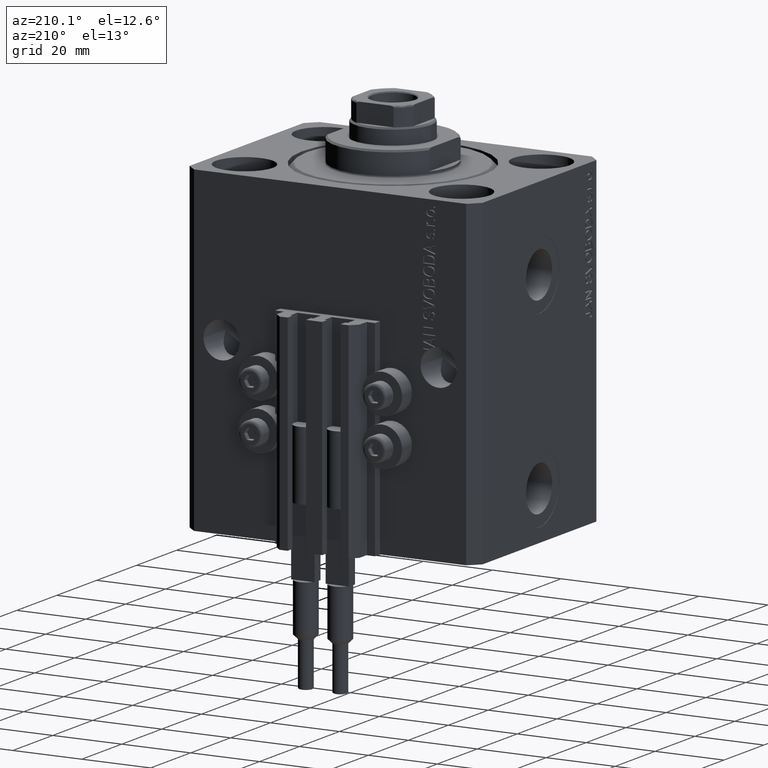
[diagram: clean part render]
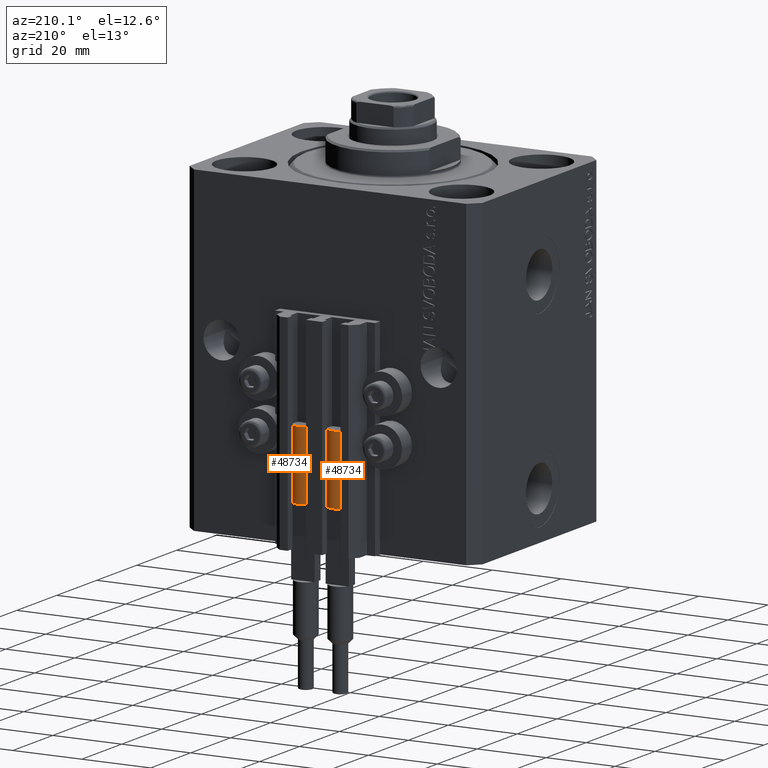
[diagram: same view with one multi-face feature highlighted, each face labeled with its STEP entity id]
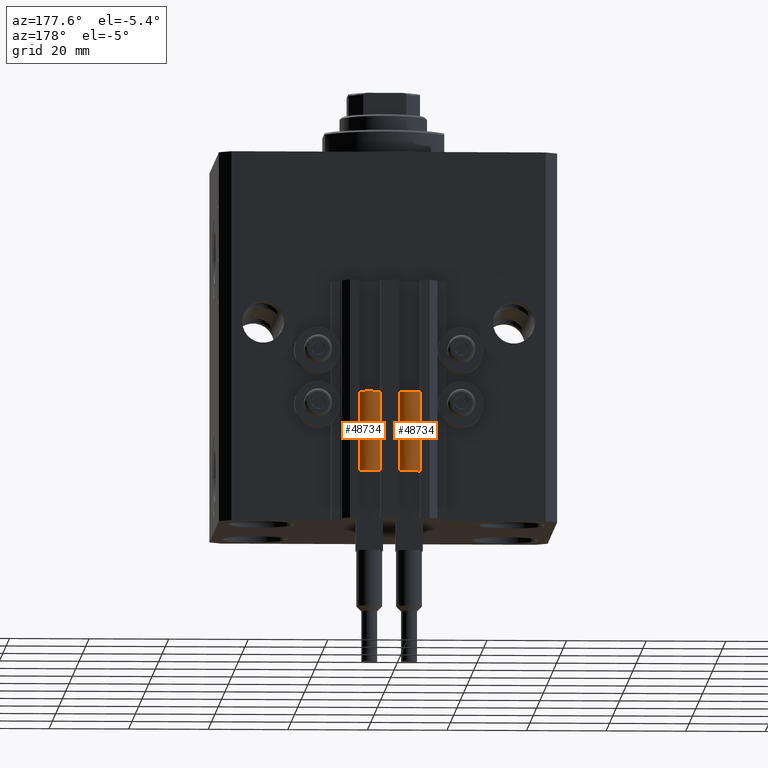
[diagram: same view with one multi-face feature highlighted, each face labeled with its STEP entity id]
A machine part, auxiliary view. The highlighted faces form ONE feature: a constant-radius fillet chain: 2 tangent blend faces with common blend radius 3.4 mm. The faces share edges in the B-rep.
A second angle (auxiliary view) of the same feature is appended — it is thin or edge-on in the first view.
Their STEP definitions:
[1] entity #48734 (Cylinder):
#1147 = AXIS2_PLACEMENT_3D ( 'NONE', #42559, #28210, #12649 ) ;
#2313 = EDGE_CURVE ( 'NONE', #5200, #47140, #4870, .T. ) ;
#3244 = DIRECTION ( 'NONE',  ( 1.000000000000000000, 0.000000000000000000, 0.000000000000000000 ) ) ;
#3631 = CARTESIAN_POINT ( 'NONE',  ( -3.400000000000000355, 0.000000000000000000, 0.000000000000000000 ) ) ;
#3956 = CIRCLE ( 'NONE', #14266, 3.400000000000000355 ) ;
#4843 = LINE ( 'NONE', #5818, #41665 ) ;
#4870 = LINE ( 'NONE', #16271, #36228 ) ;
#5176 = CIRCLE ( 'NONE', #44664, 3.400000000000000355 ) ;
#5200 = VERTEX_POINT ( 'NONE', #47973 ) ;
#5330 = ORIENTED_EDGE ( 'NONE', *, *, #23938, .T. ) ;
#5455 = DIRECTION ( 'NONE',  ( 0.000000000000000000, 0.000000000000000000, 1.000000000000000000 ) ) ;
#5818 = CARTESIAN_POINT ( 'NONE',  ( 3.400000000000000355, 4.163799117101001052E-16, 20.00000000000000000 ) ) ;
#5851 = EDGE_CURVE ( 'NONE', #9099, #22513, #3956, .T. ) ;
#6729 = EDGE_LOOP ( 'NONE', ( #40816, #5330, #33876, #30329, #11786, #28080 ) ) ;
#9099 = VERTEX_POINT ( 'NONE', #39925 ) ;
#9435 = CARTESIAN_POINT ( 'NONE',  ( 0.000000000000000000, 0.000000000000000000, 20.00000000000000000 ) ) ;
#9832 = DIRECTION ( 'NONE',  ( 1.000000000000000000, 0.000000000000000000, 0.000000000000000000 ) ) ;
#11786 = ORIENTED_EDGE ( 'NONE', *, *, #18934, .F. ) ;
#12649 = DIRECTION ( 'NONE',  ( 1.000000000000000000, 0.000000000000000000, 0.000000000000000000 ) ) ;
#13899 = DIRECTION ( 'NONE',  ( -0.000000000000000000, -0.000000000000000000, -1.000000000000000000 ) ) ;
#14266 = AXIS2_PLACEMENT_3D ( 'NONE', #38088, #45760, #3244 ) ;
#16271 = CARTESIAN_POINT ( 'NONE',  ( -3.400000000000000355, 0.000000000000000000, 20.00000000000000000 ) ) ;
#17117 = FACE_OUTER_BOUND ( 'NONE', #6729, .T. ) ;
#18746 = CIRCLE ( 'NONE', #41634, 3.400000000000000355 ) ;
#18934 = EDGE_CURVE ( 'NONE', #22513, #5200, #20124, .T. ) ;
#20124 = CIRCLE ( 'NONE', #1147, 3.400000000000000355 ) ;
#21068 = CYLINDRICAL_SURFACE ( 'NONE', #41975, 3.400000000000000355 ) ;
#21504 = EDGE_CURVE ( 'NONE', #37343, #9099, #5176, .T. ) ;
#22513 = VERTEX_POINT ( 'NONE', #44024 ) ;
#23938 = EDGE_CURVE ( 'NONE', #37343, #46504, #4843, .T. ) ;
#28080 = ORIENTED_EDGE ( 'NONE', *, *, #5851, .F. ) ;
#28210 = DIRECTION ( 'NONE',  ( 0.000000000000000000, 0.000000000000000000, 1.000000000000000000 ) ) ;
#28726 = DIRECTION ( 'NONE',  ( -1.000000000000000000, 0.000000000000000000, 0.000000000000000000 ) ) ;
#30329 = ORIENTED_EDGE ( 'NONE', *, *, #2313, .F. ) ;
#31991 = CARTESIAN_POINT ( 'NONE',  ( 3.400000000000000355, 0.000000000000000000, 20.00000000000000000 ) ) ;
#33876 = ORIENTED_EDGE ( 'NONE', *, *, #34798, .T. ) ;
#34552 = DIRECTION ( 'NONE',  ( -0.000000000000000000, -0.000000000000000000, -1.000000000000000000 ) ) ;
#34798 = EDGE_CURVE ( 'NONE', #46504, #47140, #18746, .T. ) ;
#35627 = DIRECTION ( 'NONE',  ( 1.000000000000000000, 0.000000000000000000, 0.000000000000000000 ) ) ;
#36228 = VECTOR ( 'NONE', #34552, 1000.000000000000000 ) ;
#37343 = VERTEX_POINT ( 'NONE', #31991 ) ;
#38088 = CARTESIAN_POINT ( 'NONE',  ( 0.000000000000000000, 0.000000000000000000, 20.00000000000000000 ) ) ;
#39349 = CARTESIAN_POINT ( 'NONE',  ( 0.000000000000000000, 0.000000000000000000, 20.00000000000000000 ) ) ;
#39706 = DIRECTION ( 'NONE',  ( -0.000000000000000000, -0.000000000000000000, -1.000000000000000000 ) ) ;
#39925 = CARTESIAN_POINT ( 'NONE',  ( 3.051229260478471428, 1.500000000000000000, 20.00000000000000000 ) ) ;
#40816 = ORIENTED_EDGE ( 'NONE', *, *, #21504, .F. ) ;
#41634 = AXIS2_PLACEMENT_3D ( 'NONE', #47932, #43708, #9832 ) ;
#41665 = VECTOR ( 'NONE', #39706, 1000.000000000000000 ) ;
#41975 = AXIS2_PLACEMENT_3D ( 'NONE', #9435, #13899, #28726 ) ;
#42559 = CARTESIAN_POINT ( 'NONE',  ( 0.000000000000000000, 0.000000000000000000, 20.00000000000000000 ) ) ;
#43708 = DIRECTION ( 'NONE',  ( 0.000000000000000000, 0.000000000000000000, 1.000000000000000000 ) ) ;
#44006 = CARTESIAN_POINT ( 'NONE',  ( 3.400000000000000355, 4.163799117101001052E-16, 0.000000000000000000 ) ) ;
#44024 = CARTESIAN_POINT ( 'NONE',  ( -3.051229260478471428, 1.500000000000000000, 20.00000000000000000 ) ) ;
#44664 = AXIS2_PLACEMENT_3D ( 'NONE', #39349, #5455, #35627 ) ;
#45760 = DIRECTION ( 'NONE',  ( 0.000000000000000000, 0.000000000000000000, 1.000000000000000000 ) ) ;
#46504 = VERTEX_POINT ( 'NONE', #44006 ) ;
#47140 = VERTEX_POINT ( 'NONE', #3631 ) ;
#47932 = CARTESIAN_POINT ( 'NONE',  ( 0.000000000000000000, 0.000000000000000000, 0.000000000000000000 ) ) ;
#47973 = CARTESIAN_POINT ( 'NONE',  ( -3.399999999999999467, -4.915049848600952119E-16, 20.00000000000000000 ) ) ;
#48734 = ADVANCED_FACE ( 'NONE', ( #17117 ), #21068, .T. ) ;
[2] entity #48734 (Cylinder):
#1147 = AXIS2_PLACEMENT_3D ( 'NONE', #42559, #28210, #12649 ) ;
#2313 = EDGE_CURVE ( 'NONE', #5200, #47140, #4870, .T. ) ;
#3244 = DIRECTION ( 'NONE',  ( 1.000000000000000000, 0.000000000000000000, 0.000000000000000000 ) ) ;
#3631 = CARTESIAN_POINT ( 'NONE',  ( -3.400000000000000355, 0.000000000000000000, 0.000000000000000000 ) ) ;
#3956 = CIRCLE ( 'NONE', #14266, 3.400000000000000355 ) ;
#4843 = LINE ( 'NONE', #5818, #41665 ) ;
#4870 = LINE ( 'NONE', #16271, #36228 ) ;
#5176 = CIRCLE ( 'NONE', #44664, 3.400000000000000355 ) ;
#5200 = VERTEX_POINT ( 'NONE', #47973 ) ;
#5330 = ORIENTED_EDGE ( 'NONE', *, *, #23938, .T. ) ;
#5455 = DIRECTION ( 'NONE',  ( 0.000000000000000000, 0.000000000000000000, 1.000000000000000000 ) ) ;
#5818 = CARTESIAN_POINT ( 'NONE',  ( 3.400000000000000355, 4.163799117101001052E-16, 20.00000000000000000 ) ) ;
#5851 = EDGE_CURVE ( 'NONE', #9099, #22513, #3956, .T. ) ;
#6729 = EDGE_LOOP ( 'NONE', ( #40816, #5330, #33876, #30329, #11786, #28080 ) ) ;
#9099 = VERTEX_POINT ( 'NONE', #39925 ) ;
#9435 = CARTESIAN_POINT ( 'NONE',  ( 0.000000000000000000, 0.000000000000000000, 20.00000000000000000 ) ) ;
#9832 = DIRECTION ( 'NONE',  ( 1.000000000000000000, 0.000000000000000000, 0.000000000000000000 ) ) ;
#11786 = ORIENTED_EDGE ( 'NONE', *, *, #18934, .F. ) ;
#12649 = DIRECTION ( 'NONE',  ( 1.000000000000000000, 0.000000000000000000, 0.000000000000000000 ) ) ;
#13899 = DIRECTION ( 'NONE',  ( -0.000000000000000000, -0.000000000000000000, -1.000000000000000000 ) ) ;
#14266 = AXIS2_PLACEMENT_3D ( 'NONE', #38088, #45760, #3244 ) ;
#16271 = CARTESIAN_POINT ( 'NONE',  ( -3.400000000000000355, 0.000000000000000000, 20.00000000000000000 ) ) ;
#17117 = FACE_OUTER_BOUND ( 'NONE', #6729, .T. ) ;
#18746 = CIRCLE ( 'NONE', #41634, 3.400000000000000355 ) ;
#18934 = EDGE_CURVE ( 'NONE', #22513, #5200, #20124, .T. ) ;
#20124 = CIRCLE ( 'NONE', #1147, 3.400000000000000355 ) ;
#21068 = CYLINDRICAL_SURFACE ( 'NONE', #41975, 3.400000000000000355 ) ;
#21504 = EDGE_CURVE ( 'NONE', #37343, #9099, #5176, .T. ) ;
#22513 = VERTEX_POINT ( 'NONE', #44024 ) ;
#23938 = EDGE_CURVE ( 'NONE', #37343, #46504, #4843, .T. ) ;
#28080 = ORIENTED_EDGE ( 'NONE', *, *, #5851, .F. ) ;
#28210 = DIRECTION ( 'NONE',  ( 0.000000000000000000, 0.000000000000000000, 1.000000000000000000 ) ) ;
#28726 = DIRECTION ( 'NONE',  ( -1.000000000000000000, 0.000000000000000000, 0.000000000000000000 ) ) ;
#30329 = ORIENTED_EDGE ( 'NONE', *, *, #2313, .F. ) ;
#31991 = CARTESIAN_POINT ( 'NONE',  ( 3.400000000000000355, 0.000000000000000000, 20.00000000000000000 ) ) ;
#33876 = ORIENTED_EDGE ( 'NONE', *, *, #34798, .T. ) ;
#34552 = DIRECTION ( 'NONE',  ( -0.000000000000000000, -0.000000000000000000, -1.000000000000000000 ) ) ;
#34798 = EDGE_CURVE ( 'NONE', #46504, #47140, #18746, .T. ) ;
#35627 = DIRECTION ( 'NONE',  ( 1.000000000000000000, 0.000000000000000000, 0.000000000000000000 ) ) ;
#36228 = VECTOR ( 'NONE', #34552, 1000.000000000000000 ) ;
#37343 = VERTEX_POINT ( 'NONE', #31991 ) ;
#38088 = CARTESIAN_POINT ( 'NONE',  ( 0.000000000000000000, 0.000000000000000000, 20.00000000000000000 ) ) ;
#39349 = CARTESIAN_POINT ( 'NONE',  ( 0.000000000000000000, 0.000000000000000000, 20.00000000000000000 ) ) ;
#39706 = DIRECTION ( 'NONE',  ( -0.000000000000000000, -0.000000000000000000, -1.000000000000000000 ) ) ;
#39925 = CARTESIAN_POINT ( 'NONE',  ( 3.051229260478471428, 1.500000000000000000, 20.00000000000000000 ) ) ;
#40816 = ORIENTED_EDGE ( 'NONE', *, *, #21504, .F. ) ;
#41634 = AXIS2_PLACEMENT_3D ( 'NONE', #47932, #43708, #9832 ) ;
#41665 = VECTOR ( 'NONE', #39706, 1000.000000000000000 ) ;
#41975 = AXIS2_PLACEMENT_3D ( 'NONE', #9435, #13899, #28726 ) ;
#42559 = CARTESIAN_POINT ( 'NONE',  ( 0.000000000000000000, 0.000000000000000000, 20.00000000000000000 ) ) ;
#43708 = DIRECTION ( 'NONE',  ( 0.000000000000000000, 0.000000000000000000, 1.000000000000000000 ) ) ;
#44006 = CARTESIAN_POINT ( 'NONE',  ( 3.400000000000000355, 4.163799117101001052E-16, 0.000000000000000000 ) ) ;
#44024 = CARTESIAN_POINT ( 'NONE',  ( -3.051229260478471428, 1.500000000000000000, 20.00000000000000000 ) ) ;
#44664 = AXIS2_PLACEMENT_3D ( 'NONE', #39349, #5455, #35627 ) ;
#45760 = DIRECTION ( 'NONE',  ( 0.000000000000000000, 0.000000000000000000, 1.000000000000000000 ) ) ;
#46504 = VERTEX_POINT ( 'NONE', #44006 ) ;
#47140 = VERTEX_POINT ( 'NONE', #3631 ) ;
#47932 = CARTESIAN_POINT ( 'NONE',  ( 0.000000000000000000, 0.000000000000000000, 0.000000000000000000 ) ) ;
#47973 = CARTESIAN_POINT ( 'NONE',  ( -3.399999999999999467, -4.915049848600952119E-16, 20.00000000000000000 ) ) ;
#48734 = ADVANCED_FACE ( 'NONE', ( #17117 ), #21068, .T. ) ;